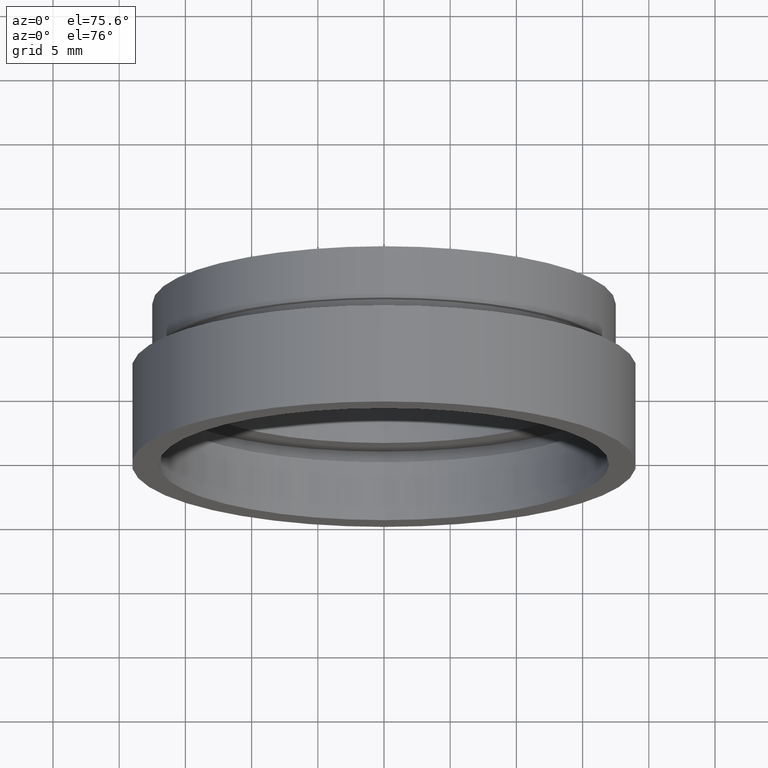
[diagram: clean part render]
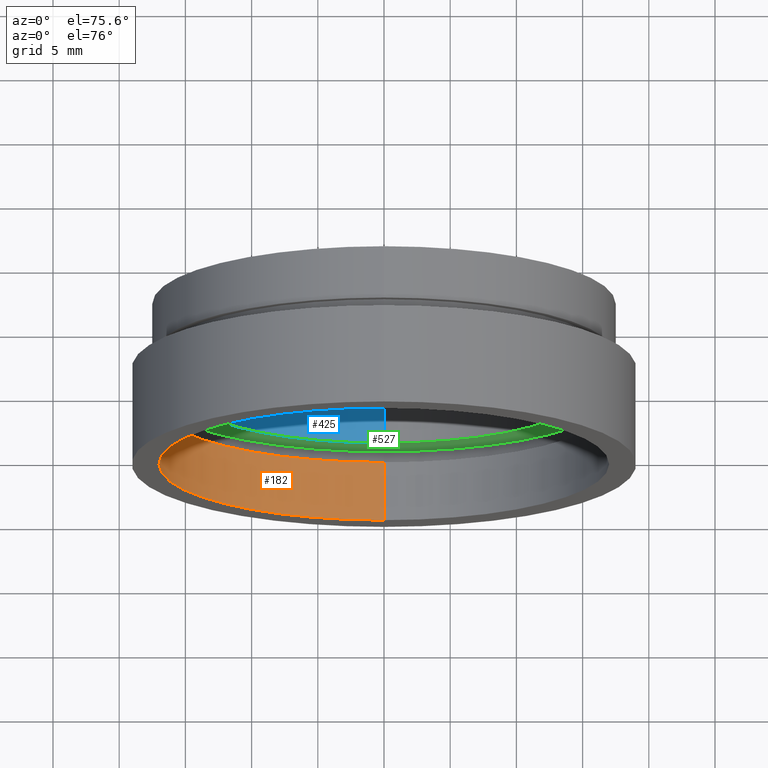
[diagram: same view with three faces highlighted in distinct colors, each labeled with its STEP entity id]
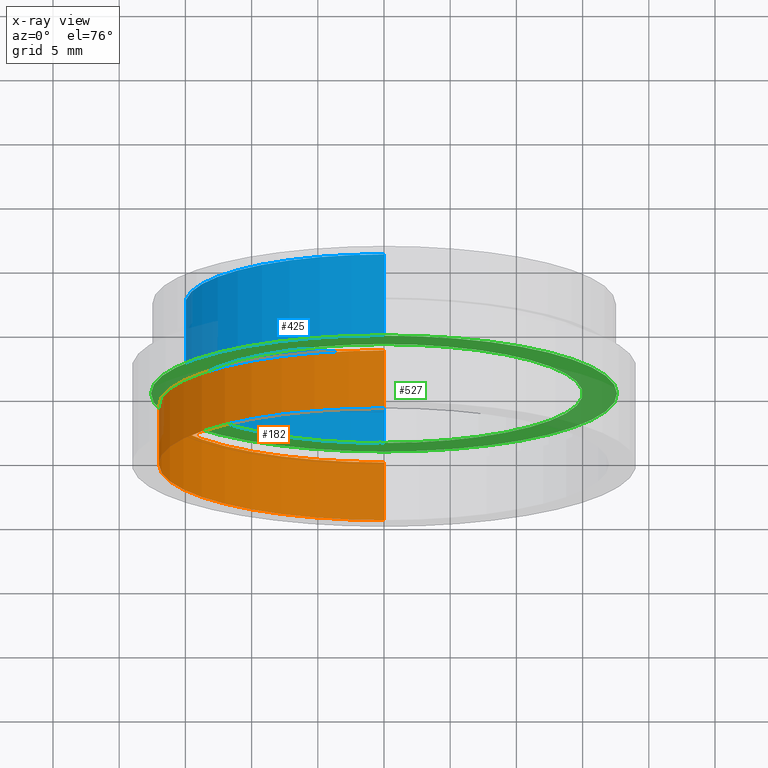
[diagram: x-ray of the same camera — body ghosted, the three highlighted faces saturated]
A machine part, auxiliary view with three faces highlighted in distinct colors.
The next image is the same camera in x-ray (body ghosted, the three faces saturated) — at least one of them is partly hidden behind the body in this view.
Their STEP definitions:

[orange] entity #182 — the highlighted cylindrical surface (partial cylindrical patch) has radius 17 mm, axis along (-0, 1, -0).
#52 = CARTESIAN_POINT ( 'NONE',  ( 0.0000000000000000000, 161.3761669434274500, 17.00000000000002100 ) ) ;
#64 = DIRECTION ( 'NONE',  ( -0.0000000000000000000, 1.000000000000000000, -0.0000000000000000000 ) ) ;
#66 = AXIS2_PLACEMENT_3D ( 'NONE', #88, #528, #382 ) ;
#88 = CARTESIAN_POINT ( 'NONE',  ( 0.0000000000000000000, 161.3761669434274500, 0.0000000000000000000 ) ) ;
#101 = AXIS2_PLACEMENT_3D ( 'NONE', #526, #237, #574 ) ;
#126 = CARTESIAN_POINT ( 'NONE',  ( 0.0000000000000000000, -2.775557561562891400E-014, 17.00000000000002100 ) ) ;
#177 = VERTEX_POINT ( 'NONE', #468 ) ;
#182 = ADVANCED_FACE ( 'NONE', ( #504 ), #618, .F. ) ;
#206 = CARTESIAN_POINT ( 'NONE',  ( 2.081899558550503000E-015, -2.775557561562891400E-014, -17.00000000000002100 ) ) ;
#223 = EDGE_CURVE ( 'NONE', #177, #259, #507, .T. ) ;
#235 = CARTESIAN_POINT ( 'NONE',  ( 0.0000000000000000000, 4.499999999999976000, 0.0000000000000000000 ) ) ;
#237 = DIRECTION ( 'NONE',  ( -0.0000000000000000000, 1.000000000000000000, -0.0000000000000000000 ) ) ;
#259 = VERTEX_POINT ( 'NONE', #473 ) ;
#292 = EDGE_CURVE ( 'NONE', #573, #320, #337, .T. ) ;
#316 = ORIENTED_EDGE ( 'NONE', *, *, #223, .T. ) ;
#320 = VERTEX_POINT ( 'NONE', #126 ) ;
#337 = CIRCLE ( 'NONE', #101, 17.00000000000002100 ) ;
#359 = CARTESIAN_POINT ( 'NONE',  ( 2.081899558550503000E-015, 161.3761669434274500, -17.00000000000002100 ) ) ;
#382 = DIRECTION ( 'NONE',  ( 0.0000000000000000000, 0.0000000000000000000, 1.000000000000000000 ) ) ;
#384 = LINE ( 'NONE', #359, #579 ) ;
#396 = DIRECTION ( 'NONE',  ( -0.0000000000000000000, 1.000000000000000000, -0.0000000000000000000 ) ) ;
#430 = EDGE_CURVE ( 'NONE', #320, #259, #619, .T. ) ;
#441 = ORIENTED_EDGE ( 'NONE', *, *, #610, .T. ) ;
#459 = AXIS2_PLACEMENT_3D ( 'NONE', #235, #571, #569 ) ;
#468 = CARTESIAN_POINT ( 'NONE',  ( 2.081899558550503400E-015, 4.499999999999976000, -17.00000000000002500 ) ) ;
#473 = CARTESIAN_POINT ( 'NONE',  ( 0.0000000000000000000, 4.499999999999976000, 17.00000000000002500 ) ) ;
#496 = VECTOR ( 'NONE', #396, 1000.000000000000000 ) ;
#504 = FACE_OUTER_BOUND ( 'NONE', #514, .T. ) ;
#507 = CIRCLE ( 'NONE', #459, 17.00000000000002500 ) ;
#514 = EDGE_LOOP ( 'NONE', ( #542, #441, #316, #598 ) ) ;
#526 = CARTESIAN_POINT ( 'NONE',  ( 0.0000000000000000000, -2.775557561562891400E-014, 0.0000000000000000000 ) ) ;
#528 = DIRECTION ( 'NONE',  ( -0.0000000000000000000, 1.000000000000000000, -0.0000000000000000000 ) ) ;
#542 = ORIENTED_EDGE ( 'NONE', *, *, #292, .F. ) ;
#569 = DIRECTION ( 'NONE',  ( 0.0000000000000000000, 0.0000000000000000000, 1.000000000000000000 ) ) ;
#571 = DIRECTION ( 'NONE',  ( -0.0000000000000000000, 1.000000000000000000, -0.0000000000000000000 ) ) ;
#573 = VERTEX_POINT ( 'NONE', #206 ) ;
#574 = DIRECTION ( 'NONE',  ( 0.0000000000000000000, 0.0000000000000000000, 1.000000000000000000 ) ) ;
#579 = VECTOR ( 'NONE', #64, 1000.000000000000000 ) ;
#598 = ORIENTED_EDGE ( 'NONE', *, *, #430, .F. ) ;
#610 = EDGE_CURVE ( 'NONE', #573, #177, #384, .T. ) ;
#618 = CYLINDRICAL_SURFACE ( 'NONE', #66, 17.00000000000002100 ) ;
#619 = LINE ( 'NONE', #52, #496 ) ;

[blue] entity #425 — the highlighted cylindrical surface (partial cylindrical patch) has radius 15 mm, axis along (-0, 1, -0).
#5 = AXIS2_PLACEMENT_3D ( 'NONE', #335, #135, #231 ) ;
#50 = ORIENTED_EDGE ( 'NONE', *, *, #260, .T. ) ;
#61 = LINE ( 'NONE', #72, #123 ) ;
#72 = CARTESIAN_POINT ( 'NONE',  ( 0.0000000000000000000, 161.3761669434274500, 15.00000000000001600 ) ) ;
#76 = DIRECTION ( 'NONE',  ( 0.0000000000000000000, 0.0000000000000000000, 1.000000000000000000 ) ) ;
#90 = ORIENTED_EDGE ( 'NONE', *, *, #146, .F. ) ;
#99 = VECTOR ( 'NONE', #240, 1000.000000000000000 ) ;
#117 = CARTESIAN_POINT ( 'NONE',  ( 0.0000000000000000000, 12.49999999999998400, 15.00000000000001800 ) ) ;
#123 = VECTOR ( 'NONE', #373, 1000.000000000000000 ) ;
#135 = DIRECTION ( 'NONE',  ( -0.0000000000000000000, 1.000000000000000000, -0.0000000000000000000 ) ) ;
#146 = EDGE_CURVE ( 'NONE', #241, #156, #61, .T. ) ;
#155 = EDGE_CURVE ( 'NONE', #457, #241, #169, .T. ) ;
#156 = VERTEX_POINT ( 'NONE', #117 ) ;
#169 = CIRCLE ( 'NONE', #196, 15.00000000000001600 ) ;
#170 = CIRCLE ( 'NONE', #5, 15.00000000000001800 ) ;
#186 = CARTESIAN_POINT ( 'NONE',  ( 1.836970198721032000E-015, 161.3761669434274500, -15.00000000000001600 ) ) ;
#187 = CYLINDRICAL_SURFACE ( 'NONE', #256, 15.00000000000001600 ) ;
#196 = AXIS2_PLACEMENT_3D ( 'NONE', #415, #517, #76 ) ;
#222 = ORIENTED_EDGE ( 'NONE', *, *, #155, .F. ) ;
#231 = DIRECTION ( 'NONE',  ( 0.0000000000000000000, 0.0000000000000000000, 1.000000000000000000 ) ) ;
#239 = VERTEX_POINT ( 'NONE', #623 ) ;
#240 = DIRECTION ( 'NONE',  ( -0.0000000000000000000, 1.000000000000000000, -0.0000000000000000000 ) ) ;
#241 = VERTEX_POINT ( 'NONE', #480 ) ;
#248 = DIRECTION ( 'NONE',  ( -0.0000000000000000000, 1.000000000000000000, -0.0000000000000000000 ) ) ;
#256 = AXIS2_PLACEMENT_3D ( 'NONE', #290, #248, #487 ) ;
#260 = EDGE_CURVE ( 'NONE', #239, #156, #170, .T. ) ;
#277 = EDGE_CURVE ( 'NONE', #457, #239, #381, .T. ) ;
#290 = CARTESIAN_POINT ( 'NONE',  ( 0.0000000000000000000, 161.3761669434274500, 0.0000000000000000000 ) ) ;
#296 = EDGE_LOOP ( 'NONE', ( #222, #506, #50, #90 ) ) ;
#308 = CARTESIAN_POINT ( 'NONE',  ( 1.836970198721032000E-015, 5.499999999999976900, -15.00000000000001600 ) ) ;
#335 = CARTESIAN_POINT ( 'NONE',  ( 0.0000000000000000000, 12.49999999999998400, 0.0000000000000000000 ) ) ;
#373 = DIRECTION ( 'NONE',  ( -0.0000000000000000000, 1.000000000000000000, -0.0000000000000000000 ) ) ;
#381 = LINE ( 'NONE', #186, #99 ) ;
#414 = FACE_OUTER_BOUND ( 'NONE', #296, .T. ) ;
#415 = CARTESIAN_POINT ( 'NONE',  ( 0.0000000000000000000, 5.499999999999976900, 0.0000000000000000000 ) ) ;
#425 = ADVANCED_FACE ( 'NONE', ( #414 ), #187, .F. ) ;
#457 = VERTEX_POINT ( 'NONE', #308 ) ;
#480 = CARTESIAN_POINT ( 'NONE',  ( 0.0000000000000000000, 5.499999999999976900, 15.00000000000001600 ) ) ;
#487 = DIRECTION ( 'NONE',  ( 0.0000000000000000000, 0.0000000000000000000, 1.000000000000000000 ) ) ;
#506 = ORIENTED_EDGE ( 'NONE', *, *, #277, .T. ) ;
#517 = DIRECTION ( 'NONE',  ( -0.0000000000000000000, 1.000000000000000000, -0.0000000000000000000 ) ) ;
#623 = CARTESIAN_POINT ( 'NONE',  ( 1.836970198721032300E-015, 12.49999999999998400, -15.00000000000002000 ) ) ;

[green] entity #527 — the highlighted planar face has unit normal (-0, 1, 0).
#2 = CARTESIAN_POINT ( 'NONE',  ( 0.0000000000000000000, 5.499999999999976900, 0.0000000000000000000 ) ) ;
#19 = VERTEX_POINT ( 'NONE', #162 ) ;
#47 = VERTEX_POINT ( 'NONE', #311 ) ;
#53 = ORIENTED_EDGE ( 'NONE', *, *, #91, .F. ) ;
#63 = PLANE ( 'NONE',  #398 ) ;
#68 = AXIS2_PLACEMENT_3D ( 'NONE', #2, #343, #443 ) ;
#76 = DIRECTION ( 'NONE',  ( 0.0000000000000000000, 0.0000000000000000000, 1.000000000000000000 ) ) ;
#80 = DIRECTION ( 'NONE',  ( -0.0000000000000000000, 1.000000000000000000, -0.0000000000000000000 ) ) ;
#91 = EDGE_CURVE ( 'NONE', #19, #47, #417, .T. ) ;
#110 = CIRCLE ( 'NONE', #230, 17.60000000000002300 ) ;
#115 = CARTESIAN_POINT ( 'NONE',  ( 0.0000000000000000000, 5.499999999999976900, 0.0000000000000000000 ) ) ;
#119 = EDGE_CURVE ( 'NONE', #47, #19, #110, .T. ) ;
#155 = EDGE_CURVE ( 'NONE', #457, #241, #169, .T. ) ;
#162 = CARTESIAN_POINT ( 'NONE',  ( 2.155378366499344400E-015, 5.499999999999976900, -17.60000000000002300 ) ) ;
#168 = EDGE_LOOP ( 'NONE', ( #421, #53 ) ) ;
#169 = CIRCLE ( 'NONE', #196, 15.00000000000001600 ) ;
#173 = DIRECTION ( 'NONE',  ( -0.0000000000000000000, 1.000000000000000000, -0.0000000000000000000 ) ) ;
#196 = AXIS2_PLACEMENT_3D ( 'NONE', #415, #517, #76 ) ;
#226 = DIRECTION ( 'NONE',  ( 0.0000000000000000000, 0.0000000000000000000, 1.000000000000000000 ) ) ;
#228 = CARTESIAN_POINT ( 'NONE',  ( 0.0000000000000000000, 5.499999999999976900, 0.0000000000000000000 ) ) ;
#230 = AXIS2_PLACEMENT_3D ( 'NONE', #228, #80, #226 ) ;
#241 = VERTEX_POINT ( 'NONE', #480 ) ;
#289 = EDGE_LOOP ( 'NONE', ( #511, #407 ) ) ;
#308 = CARTESIAN_POINT ( 'NONE',  ( 1.836970198721032000E-015, 5.499999999999976900, -15.00000000000001600 ) ) ;
#311 = CARTESIAN_POINT ( 'NONE',  ( 0.0000000000000000000, 5.499999999999976900, 17.60000000000002300 ) ) ;
#325 = DIRECTION ( 'NONE',  ( 0.0000000000000000000, 0.0000000000000000000, 1.000000000000000000 ) ) ;
#326 = AXIS2_PLACEMENT_3D ( 'NONE', #115, #173, #325 ) ;
#343 = DIRECTION ( 'NONE',  ( -0.0000000000000000000, 1.000000000000000000, -0.0000000000000000000 ) ) ;
#398 = AXIS2_PLACEMENT_3D ( 'NONE', #402, #449, #593 ) ;
#402 = CARTESIAN_POINT ( 'NONE',  ( 17.60000000000002300, 5.499999999999983100, 0.0000000000000000000 ) ) ;
#407 = ORIENTED_EDGE ( 'NONE', *, *, #155, .T. ) ;
#415 = CARTESIAN_POINT ( 'NONE',  ( 0.0000000000000000000, 5.499999999999976900, 0.0000000000000000000 ) ) ;
#417 = CIRCLE ( 'NONE', #326, 17.60000000000002300 ) ;
#421 = ORIENTED_EDGE ( 'NONE', *, *, #119, .F. ) ;
#443 = DIRECTION ( 'NONE',  ( 0.0000000000000000000, 0.0000000000000000000, 1.000000000000000000 ) ) ;
#445 = EDGE_CURVE ( 'NONE', #241, #457, #477, .T. ) ;
#448 = FACE_OUTER_BOUND ( 'NONE', #168, .T. ) ;
#449 = DIRECTION ( 'NONE',  ( -0.0000000000000000000, 1.000000000000000000, 0.0000000000000000000 ) ) ;
#457 = VERTEX_POINT ( 'NONE', #308 ) ;
#465 = FACE_BOUND ( 'NONE', #289, .T. ) ;
#477 = CIRCLE ( 'NONE', #68, 15.00000000000001600 ) ;
#480 = CARTESIAN_POINT ( 'NONE',  ( 0.0000000000000000000, 5.499999999999976900, 15.00000000000001600 ) ) ;
#511 = ORIENTED_EDGE ( 'NONE', *, *, #445, .T. ) ;
#517 = DIRECTION ( 'NONE',  ( -0.0000000000000000000, 1.000000000000000000, -0.0000000000000000000 ) ) ;
#527 = ADVANCED_FACE ( 'NONE', ( #448, #465 ), #63, .F. ) ;
#593 = DIRECTION ( 'NONE',  ( 0.0000000000000000000, 0.0000000000000000000, 1.000000000000000000 ) ) ;